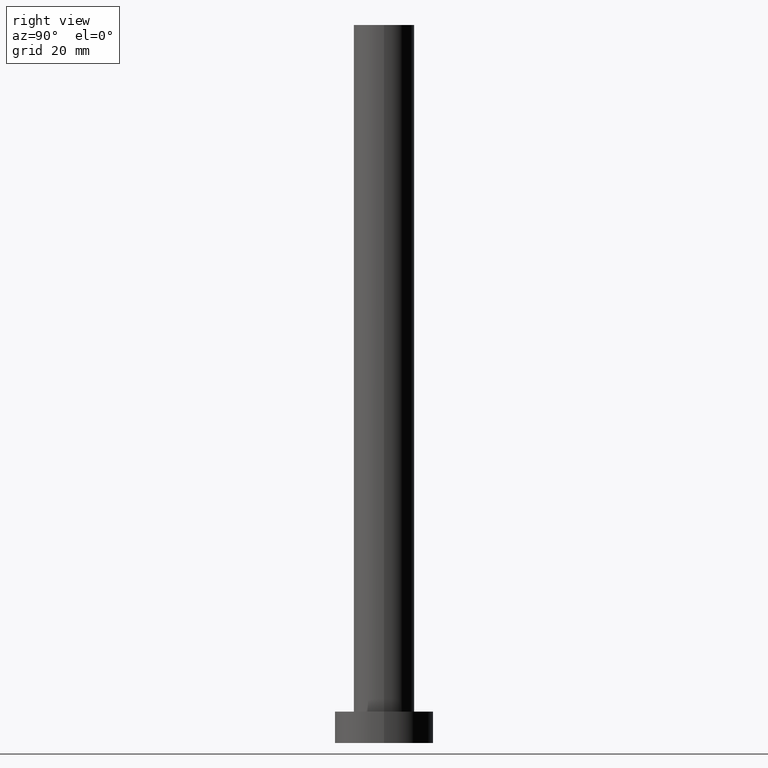
[diagram: clean part render]
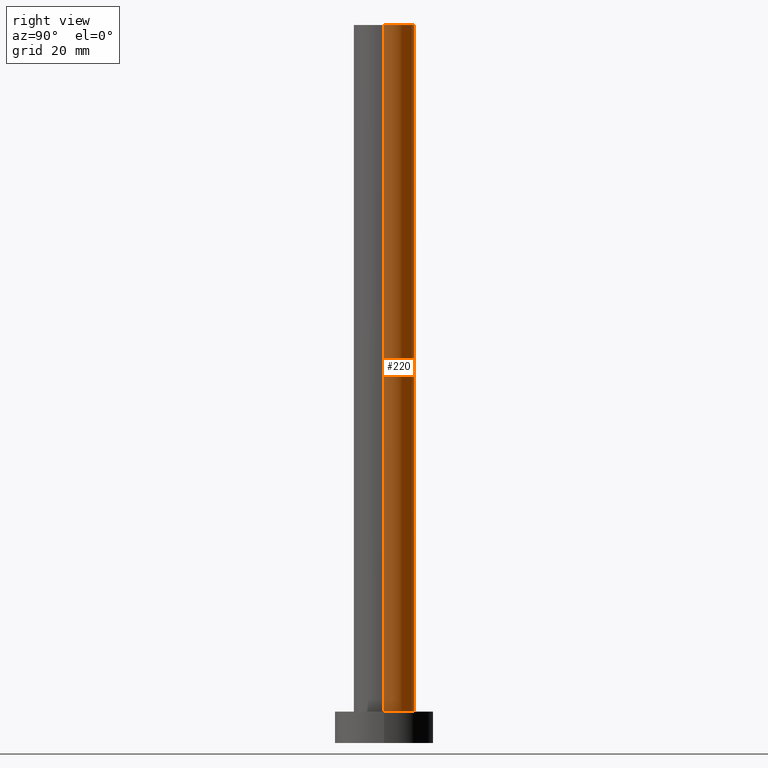
[diagram: same view with one face highlighted and labeled with its STEP entity id]
A machine part, right view. The second image highlights one B-rep face of the part: STEP entity #220.
In plain terms, the highlighted cylindrical surface (edge-blend (fillet) strip) has radius 6.75 mm, axis along (-0, -0, -1).
Its self-contained STEP definition (entity closure, byte-faithful):
#2 = DIRECTION ( 'NONE',  ( 1.000000000000000000, 0.000000000000000000, 0.000000000000000000 ) ) ;
#7 = DIRECTION ( 'NONE',  ( -1.000000000000000000, 0.000000000000000000, 0.000000000000000000 ) ) ;
#10 = EDGE_CURVE ( 'NONE', #183, #200, #158, .T. ) ;
#12 = ORIENTED_EDGE ( 'NONE', *, *, #10, .F. ) ;
#14 = DIRECTION ( 'NONE',  ( 1.000000000000000000, 0.000000000000000000, 0.000000000000000000 ) ) ;
#15 = CARTESIAN_POINT ( 'NONE',  ( 6.750000000000000000, 8.266365894244634333E-16, 7.000000000000000000 ) ) ;
#19 = CARTESIAN_POINT ( 'NONE',  ( -6.750000000000000000, 0.000000000000000000, 160.0000000000000000 ) ) ;
#26 = CARTESIAN_POINT ( 'NONE',  ( 0.000000000000000000, 0.000000000000000000, 160.0000000000000000 ) ) ;
#36 = AXIS2_PLACEMENT_3D ( 'NONE', #240, #184, #2 ) ;
#38 = CARTESIAN_POINT ( 'NONE',  ( 6.750000000000000000, 8.266365894244634333E-16, 160.0000000000000000 ) ) ;
#41 = EDGE_CURVE ( 'NONE', #101, #200, #118, .T. ) ;
#66 = ORIENTED_EDGE ( 'NONE', *, *, #161, .F. ) ;
#76 = CARTESIAN_POINT ( 'NONE',  ( 6.750000000000000000, 8.266365894244634333E-16, 160.0000000000000000 ) ) ;
#81 = CARTESIAN_POINT ( 'NONE',  ( -6.750000000000000000, 0.000000000000000000, 7.000000000000000000 ) ) ;
#85 = CYLINDRICAL_SURFACE ( 'NONE', #234, 6.750000000000000000 ) ;
#91 = VERTEX_POINT ( 'NONE', #76 ) ;
#95 = EDGE_CURVE ( 'NONE', #91, #101, #134, .T. ) ;
#96 = CARTESIAN_POINT ( 'NONE',  ( -6.750000000000000000, 0.000000000000000000, 160.0000000000000000 ) ) ;
#99 = FACE_OUTER_BOUND ( 'NONE', #170, .T. ) ;
#101 = VERTEX_POINT ( 'NONE', #15 ) ;
#111 = VECTOR ( 'NONE', #151, 1000.000000000000000 ) ;
#114 = DIRECTION ( 'NONE',  ( -0.000000000000000000, -0.000000000000000000, -1.000000000000000000 ) ) ;
#118 = CIRCLE ( 'NONE', #175, 6.750000000000000000 ) ;
#124 = ORIENTED_EDGE ( 'NONE', *, *, #95, .T. ) ;
#134 = LINE ( 'NONE', #38, #204 ) ;
#139 = DIRECTION ( 'NONE',  ( -0.000000000000000000, -0.000000000000000000, -1.000000000000000000 ) ) ;
#143 = ORIENTED_EDGE ( 'NONE', *, *, #41, .T. ) ;
#151 = DIRECTION ( 'NONE',  ( -0.000000000000000000, -0.000000000000000000, -1.000000000000000000 ) ) ;
#158 = LINE ( 'NONE', #96, #111 ) ;
#161 = EDGE_CURVE ( 'NONE', #91, #183, #181, .T. ) ;
#170 = EDGE_LOOP ( 'NONE', ( #66, #124, #143, #12 ) ) ;
#175 = AXIS2_PLACEMENT_3D ( 'NONE', #230, #250, #14 ) ;
#181 = CIRCLE ( 'NONE', #36, 6.750000000000000000 ) ;
#183 = VERTEX_POINT ( 'NONE', #19 ) ;
#184 = DIRECTION ( 'NONE',  ( 0.000000000000000000, 0.000000000000000000, 1.000000000000000000 ) ) ;
#200 = VERTEX_POINT ( 'NONE', #81 ) ;
#204 = VECTOR ( 'NONE', #114, 1000.000000000000000 ) ;
#220 = ADVANCED_FACE ( 'NONE', ( #99 ), #85, .T. ) ;
#230 = CARTESIAN_POINT ( 'NONE',  ( 0.000000000000000000, 0.000000000000000000, 7.000000000000000000 ) ) ;
#234 = AXIS2_PLACEMENT_3D ( 'NONE', #26, #139, #7 ) ;
#240 = CARTESIAN_POINT ( 'NONE',  ( 0.000000000000000000, 0.000000000000000000, 160.0000000000000000 ) ) ;
#250 = DIRECTION ( 'NONE',  ( 0.000000000000000000, 0.000000000000000000, 1.000000000000000000 ) ) ;